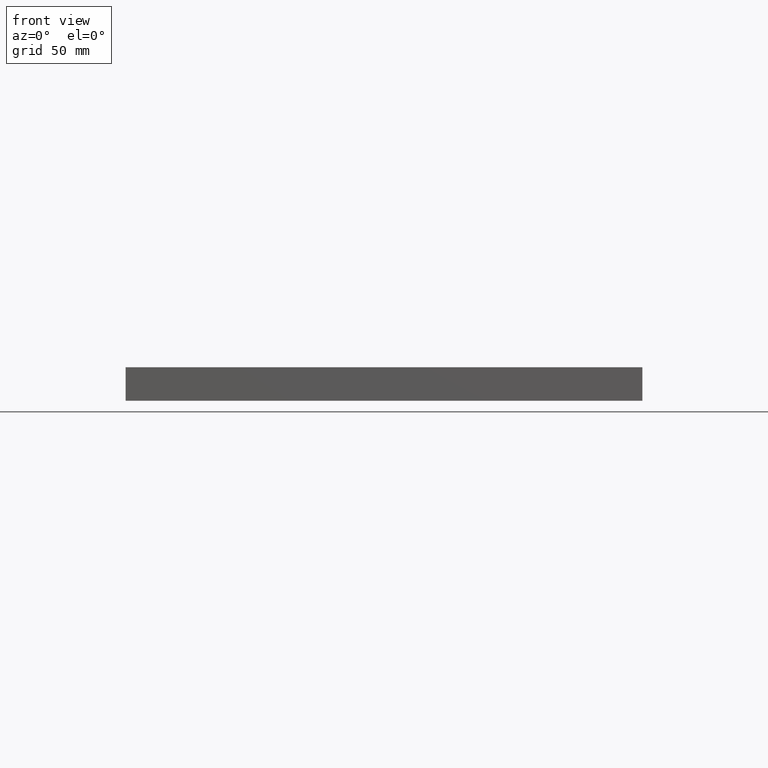
[diagram: clean part render]
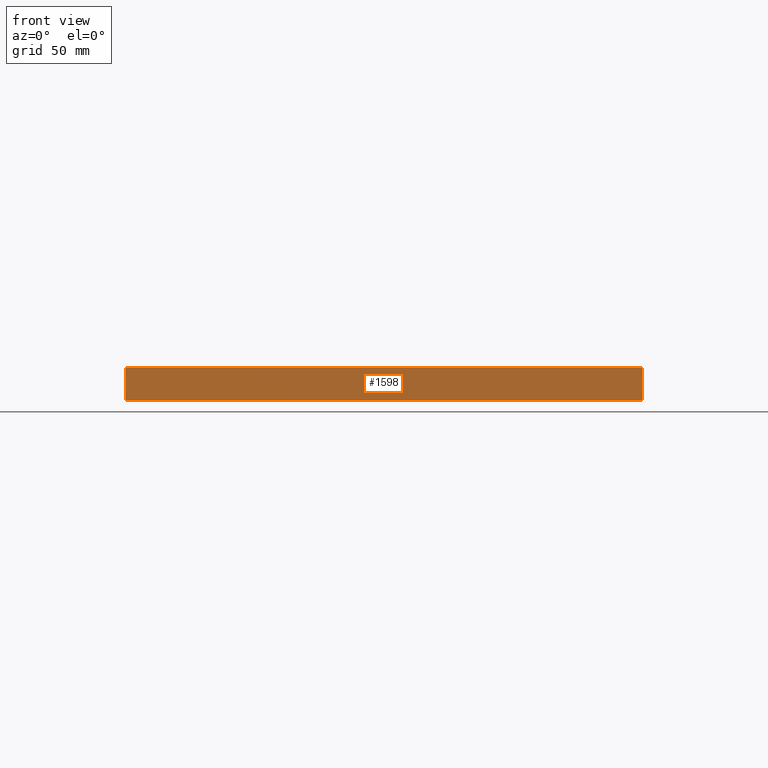
[diagram: same view with one face highlighted and labeled with its STEP entity id]
A machine part, front view. The second image highlights one B-rep face of the part: STEP entity #1598.
In plain terms, the highlighted planar face has unit normal (0, 1, 0).
Its self-contained STEP definition (entity closure, byte-faithful):
#133 = CARTESIAN_POINT ( 'NONE',  ( 100.0000000000000600, -100.0000000000000300, 13.00000000000000000 ) ) ;
#193 = DIRECTION ( 'NONE',  ( 1.000000000000000000, 0.0000000000000000000, 0.0000000000000000000 ) ) ;
#348 = CARTESIAN_POINT ( 'NONE',  ( -99.99999999999997200, -100.0000000000000300, 0.0000000000000000000 ) ) ;
#441 = CARTESIAN_POINT ( 'NONE',  ( -99.99999999999997200, -100.0000000000000300, 0.0000000000000000000 ) ) ;
#462 = PLANE ( 'NONE',  #972 ) ;
#615 = ORIENTED_EDGE ( 'NONE', *, *, #1959, .F. ) ;
#675 = VECTOR ( 'NONE', #2780, 1000.000000000000000 ) ;
#679 = CARTESIAN_POINT ( 'NONE',  ( -99.99999999999997200, -100.0000000000000300, 13.00000000000000000 ) ) ;
#728 = VECTOR ( 'NONE', #1238, 1000.000000000000000 ) ;
#731 = CARTESIAN_POINT ( 'NONE',  ( -99.99999999999997200, -100.0000000000000300, 13.00000000000000000 ) ) ;
#739 = DIRECTION ( 'NONE',  ( -0.0000000000000000000, -0.0000000000000000000, -1.000000000000000000 ) ) ;
#898 = DIRECTION ( 'NONE',  ( 0.0000000000000000000, 1.000000000000000000, 0.0000000000000000000 ) ) ;
#972 = AXIS2_PLACEMENT_3D ( 'NONE', #679, #898, #2452 ) ;
#1139 = CARTESIAN_POINT ( 'NONE',  ( 100.0000000000000600, -100.0000000000000300, 13.00000000000000000 ) ) ;
#1173 = ORIENTED_EDGE ( 'NONE', *, *, #2489, .T. ) ;
#1210 = VERTEX_POINT ( 'NONE', #1139 ) ;
#1214 = EDGE_LOOP ( 'NONE', ( #1173, #615, #1676, #1986 ) ) ;
#1238 = DIRECTION ( 'NONE',  ( -0.0000000000000000000, -0.0000000000000000000, -1.000000000000000000 ) ) ;
#1260 = CARTESIAN_POINT ( 'NONE',  ( -99.99999999999997200, -100.0000000000000300, 13.00000000000000000 ) ) ;
#1261 = VERTEX_POINT ( 'NONE', #2573 ) ;
#1294 = VERTEX_POINT ( 'NONE', #1260 ) ;
#1326 = LINE ( 'NONE', #133, #728 ) ;
#1396 = EDGE_CURVE ( 'NONE', #1294, #1210, #2730, .T. ) ;
#1555 = VECTOR ( 'NONE', #193, 1000.000000000000000 ) ;
#1598 = ADVANCED_FACE ( 'NONE', ( #1727 ), #462, .F. ) ;
#1676 = ORIENTED_EDGE ( 'NONE', *, *, #1396, .F. ) ;
#1727 = FACE_OUTER_BOUND ( 'NONE', #1214, .T. ) ;
#1790 = EDGE_CURVE ( 'NONE', #1294, #2199, #2028, .T. ) ;
#1893 = VECTOR ( 'NONE', #739, 1000.000000000000000 ) ;
#1959 = EDGE_CURVE ( 'NONE', #1210, #1261, #1326, .T. ) ;
#1986 = ORIENTED_EDGE ( 'NONE', *, *, #1790, .T. ) ;
#2028 = LINE ( 'NONE', #731, #1893 ) ;
#2199 = VERTEX_POINT ( 'NONE', #441 ) ;
#2400 = CARTESIAN_POINT ( 'NONE',  ( -99.99999999999997200, -100.0000000000000300, 13.00000000000000000 ) ) ;
#2443 = LINE ( 'NONE', #348, #675 ) ;
#2452 = DIRECTION ( 'NONE',  ( 0.0000000000000000000, -0.0000000000000000000, 1.000000000000000000 ) ) ;
#2489 = EDGE_CURVE ( 'NONE', #2199, #1261, #2443, .T. ) ;
#2573 = CARTESIAN_POINT ( 'NONE',  ( 100.0000000000000600, -100.0000000000000300, 0.0000000000000000000 ) ) ;
#2730 = LINE ( 'NONE', #2400, #1555 ) ;
#2780 = DIRECTION ( 'NONE',  ( 1.000000000000000000, 0.0000000000000000000, 0.0000000000000000000 ) ) ;